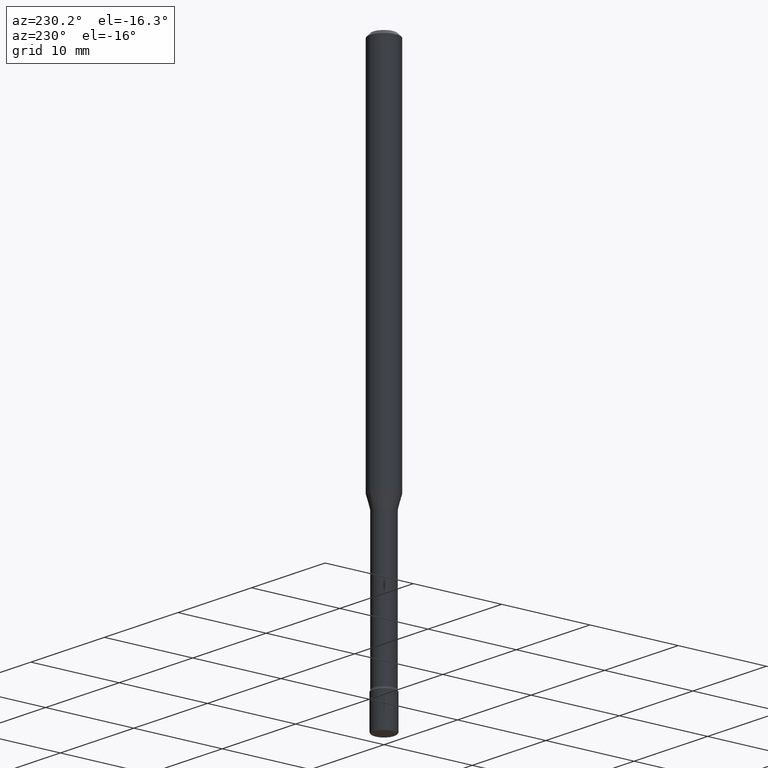
[diagram: clean part render]
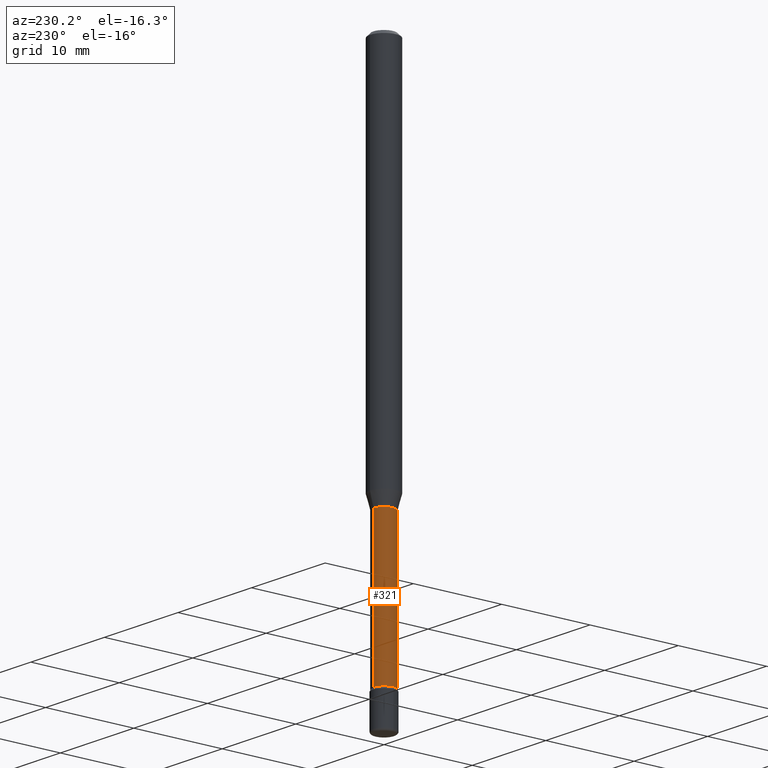
[diagram: same view with one face highlighted and labeled with its STEP entity id]
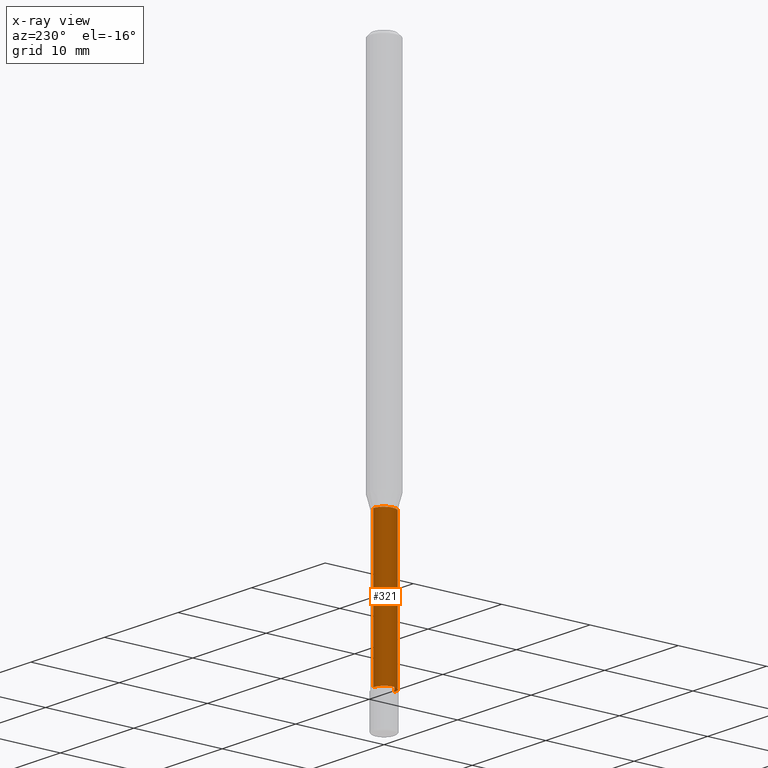
[diagram: x-ray of the same camera — body ghosted, the highlighted face saturated]
A machine part, auxiliary view. The second image highlights one B-rep face of the part: STEP entity #321.
The next image is the same camera in x-ray: the body ghosted, the highlighted face saturated — about 0% of this face is hidden behind the body in this view.
In plain terms, the highlighted cylindrical surface (edge-blend (fillet) strip) has radius 1.1938 mm, axis along (-0, 0, 1).
Its self-contained STEP definition (entity closure, byte-faithful):
#11 = CARTESIAN_POINT ( 'NONE',  ( 5.725012483141114982E-29, -8.173314353297587961E-15, -2.341000000000000192 ) ) ;
#13 = DIRECTION ( 'NONE',  ( -2.445541428082492260E-29, 3.491377340152750324E-15, 1.000000000000000000 ) ) ;
#28 = CARTESIAN_POINT ( 'NONE',  ( 3.339550858073043792E-16, 0.04699999999999405348, -1.701974787463811145 ) ) ;
#29 = AXIS2_PLACEMENT_3D ( 'NONE', #255, #449, #46 ) ;
#36 = EDGE_CURVE ( 'NONE', #134, #82, #468, .T. ) ;
#37 = EDGE_LOOP ( 'NONE', ( #362, #129, #545, #233 ) ) ;
#40 = FACE_OUTER_BOUND ( 'NONE', #37, .T. ) ;
#42 = CARTESIAN_POINT ( 'NONE',  ( 3.339550858072470388E-16, 0.04700000000000000705, 3.139786639040668225E-16 ) ) ;
#46 = DIRECTION ( 'NONE',  ( -6.982962677686265922E-15, -1.000000000000000000, 3.491377340152749929E-15 ) ) ;
#48 = CARTESIAN_POINT ( 'NONE',  ( -3.281992458511972621E-16, -0.04700000000000817413, -2.340999999999999748 ) ) ;
#52 = VERTEX_POINT ( 'NONE', #48 ) ;
#69 = DIRECTION ( 'NONE',  ( -6.982962677686266711E-15, -1.000000000000000000, 5.812442539711199378E-15 ) ) ;
#82 = VERTEX_POINT ( 'NONE', #28 ) ;
#101 = CIRCLE ( 'NONE', #259, 0.04700000000000000705 ) ;
#111 = CARTESIAN_POINT ( 'NONE',  ( 4.162249852294645006E-29, -5.942236206462443190E-15, -1.701974787463810923 ) ) ;
#120 = VERTEX_POINT ( 'NONE', #354 ) ;
#125 = DIRECTION ( 'NONE',  ( -2.445541428082492260E-29, 3.491377340152750324E-15, 1.000000000000000000 ) ) ;
#127 = CARTESIAN_POINT ( 'NONE',  ( -3.281992458512545531E-16, -0.04700000000000000705, 6.421681338784253533E-16 ) ) ;
#129 = ORIENTED_EDGE ( 'NONE', *, *, #365, .T. ) ;
#134 = VERTEX_POINT ( 'NONE', #444 ) ;
#148 = VECTOR ( 'NONE', #125, 39.37007874015748143 ) ;
#210 = CIRCLE ( 'NONE', #322, 0.04699999999999999317 ) ;
#233 = ORIENTED_EDGE ( 'NONE', *, *, #283, .F. ) ;
#255 = CARTESIAN_POINT ( 'NONE',  ( -1.169113584055446105E-44, 1.669184350826100908E-30, 4.780733988912460139E-16 ) ) ;
#259 = AXIS2_PLACEMENT_3D ( 'NONE', #11, #453, #363 ) ;
#283 = EDGE_CURVE ( 'NONE', #82, #120, #210, .T. ) ;
#316 = DIRECTION ( 'NONE',  ( -2.445541428082492260E-29, 3.491377340152750324E-15, 1.000000000000000000 ) ) ;
#321 = ADVANCED_FACE ( 'NONE', ( #40 ), #486, .T. ) ;
#322 = AXIS2_PLACEMENT_3D ( 'NONE', #111, #316, #69 ) ;
#354 = CARTESIAN_POINT ( 'NONE',  ( -3.281992458512128914E-16, -0.04700000000000593980, -1.701974787463810701 ) ) ;
#360 = VECTOR ( 'NONE', #13, 39.37007874015748143 ) ;
#362 = ORIENTED_EDGE ( 'NONE', *, *, #36, .F. ) ;
#363 = DIRECTION ( 'NONE',  ( -6.982962677686265922E-15, -1.000000000000000000, 5.812442539711197800E-15 ) ) ;
#365 = EDGE_CURVE ( 'NONE', #134, #52, #101, .T. ) ;
#385 = EDGE_CURVE ( 'NONE', #52, #120, #402, .T. ) ;
#402 = LINE ( 'NONE', #127, #148 ) ;
#444 = CARTESIAN_POINT ( 'NONE',  ( 3.446132268437060393E-16, 0.04699999999999183303, -2.341000000000000192 ) ) ;
#449 = DIRECTION ( 'NONE',  ( -2.445541428082492260E-29, 3.491377340152750324E-15, 1.000000000000000000 ) ) ;
#453 = DIRECTION ( 'NONE',  ( -2.445541428082492260E-29, 3.491377340152750324E-15, 1.000000000000000000 ) ) ;
#468 = LINE ( 'NONE', #42, #360 ) ;
#486 = CYLINDRICAL_SURFACE ( 'NONE', #29, 0.04700000000000000705 ) ;
#545 = ORIENTED_EDGE ( 'NONE', *, *, #385, .T. ) ;